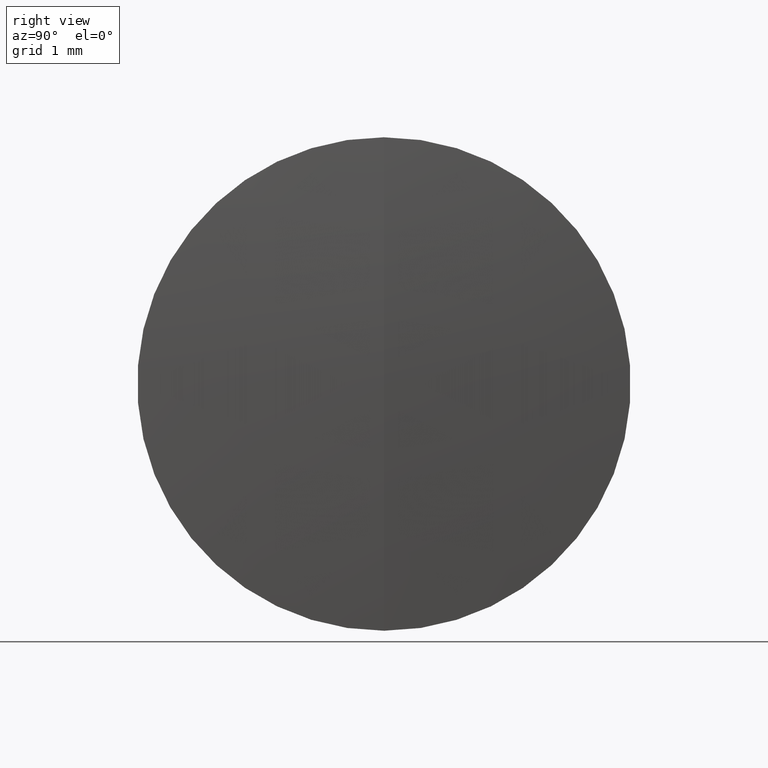
[diagram: clean part render]
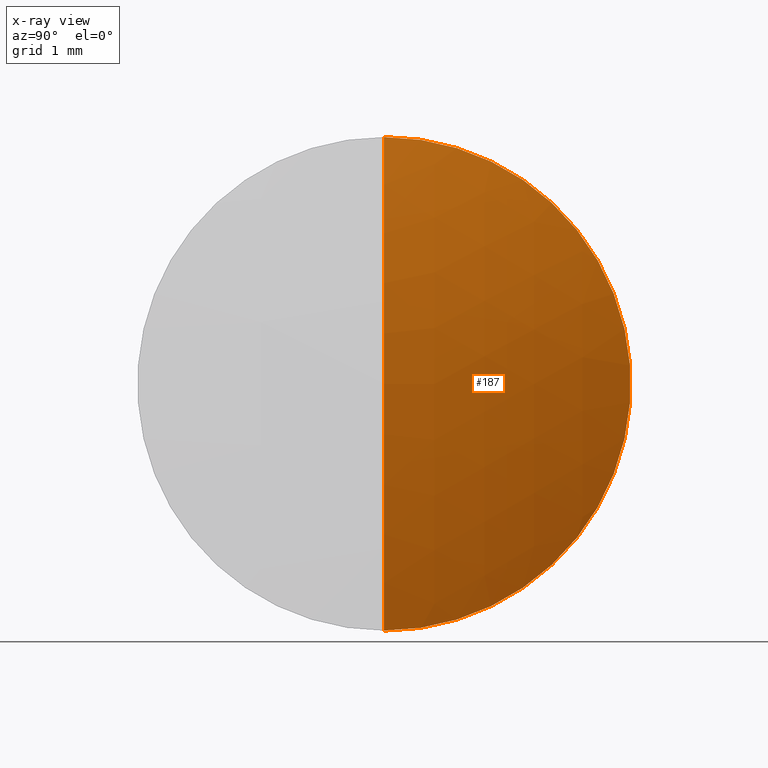
[diagram: x-ray — body ghosted, one internal face saturated and labeled with its STEP entity id]
A machine part, right view, then the same camera in x-ray: the body is ghosted and one INTERNAL B-rep face — a face not visible from any outside direction — is saturated and labeled: STEP entity #187.
In plain terms, the highlighted spherical surface has radius 10.6 mm.
Its self-contained STEP definition (entity closure, byte-faithful):
#11 = CARTESIAN_POINT ( 'NONE',  ( 267.3193874442736700, 0.0000000000000000000, 3.999999999999998200 ) ) ;
#14 = ORIENTED_EDGE ( 'NONE', *, *, #19, .T. ) ;
#15 = DIRECTION ( 'NONE',  ( 0.0000000000000000000, -1.224646799147353200E-016, 1.000000000000000000 ) ) ;
#19 = EDGE_CURVE ( 'NONE', #234, #321, #226, .T. ) ;
#51 = SPHERICAL_SURFACE ( 'NONE', #62, 10.60000000000000500 ) ;
#58 = CARTESIAN_POINT ( 'NONE',  ( 257.5030744908272600, 0.0000000000000000000, -2.901324745673849200E-016 ) ) ;
#59 = CIRCLE ( 'NONE', #252, 10.60000000000000500 ) ;
#62 = AXIS2_PLACEMENT_3D ( 'NONE', #177, #346, #317 ) ;
#97 = CARTESIAN_POINT ( 'NONE',  ( 267.3193874442736700, 0.0000000000000000000, 0.0000000000000000000 ) ) ;
#110 = DIRECTION ( 'NONE',  ( 0.0000000000000000000, 0.0000000000000000000, -1.000000000000000000 ) ) ;
#126 = AXIS2_PLACEMENT_3D ( 'NONE', #97, #261, #233 ) ;
#145 = ORIENTED_EDGE ( 'NONE', *, *, #202, .F. ) ;
#162 = ORIENTED_EDGE ( 'NONE', *, *, #254, .F. ) ;
#177 = CARTESIAN_POINT ( 'NONE',  ( 257.5030744908272600, 0.0000000000000000000, -2.901324745673849200E-016 ) ) ;
#187 = ADVANCED_FACE ( 'NONE', ( #342 ), #51, .T. ) ;
#194 = AXIS2_PLACEMENT_3D ( 'NONE', #58, #251, #15 ) ;
#202 = EDGE_CURVE ( 'NONE', #243, #321, #212, .T. ) ;
#211 = CARTESIAN_POINT ( 'NONE',  ( 267.3193874442736700, 4.898587196589410900E-016, -3.999999999999998200 ) ) ;
#212 = CIRCLE ( 'NONE', #126, 3.999999999999998200 ) ;
#214 = CARTESIAN_POINT ( 'NONE',  ( 268.1030744908272800, 0.0000000000000000000, 3.589303289807125600E-016 ) ) ;
#226 = CIRCLE ( 'NONE', #194, 10.60000000000000500 ) ;
#233 = DIRECTION ( 'NONE',  ( 0.0000000000000000000, 0.0000000000000000000, 1.000000000000000000 ) ) ;
#234 = VERTEX_POINT ( 'NONE', #214 ) ;
#243 = VERTEX_POINT ( 'NONE', #11 ) ;
#248 = DIRECTION ( 'NONE',  ( 0.0000000000000000000, -1.000000000000000000, 0.0000000000000000000 ) ) ;
#251 = DIRECTION ( 'NONE',  ( -0.0000000000000000000, 1.000000000000000000, 1.224646799147353200E-016 ) ) ;
#252 = AXIS2_PLACEMENT_3D ( 'NONE', #284, #248, #110 ) ;
#254 = EDGE_CURVE ( 'NONE', #234, #243, #59, .T. ) ;
#261 = DIRECTION ( 'NONE',  ( -1.000000000000000000, -0.0000000000000000000, -0.0000000000000000000 ) ) ;
#284 = CARTESIAN_POINT ( 'NONE',  ( 257.5030744908272600, 0.0000000000000000000, -2.901324745673849200E-016 ) ) ;
#291 = EDGE_LOOP ( 'NONE', ( #162, #14, #145 ) ) ;
#317 = DIRECTION ( 'NONE',  ( 0.0000000000000000000, 0.0000000000000000000, 1.000000000000000000 ) ) ;
#321 = VERTEX_POINT ( 'NONE', #211 ) ;
#342 = FACE_OUTER_BOUND ( 'NONE', #291, .T. ) ;
#346 = DIRECTION ( 'NONE',  ( 0.0000000000000000000, 1.000000000000000000, 0.0000000000000000000 ) ) ;